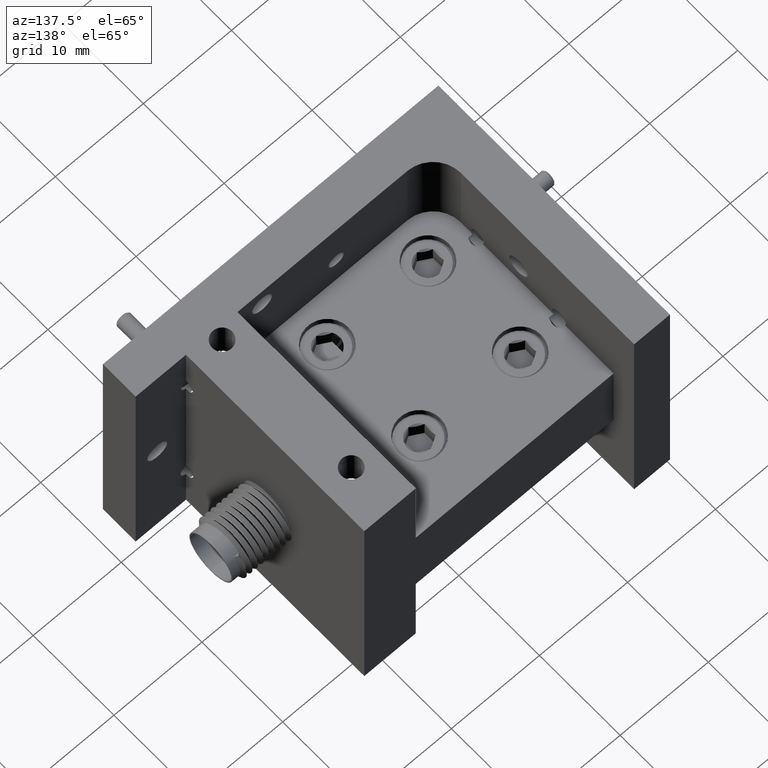
[diagram: clean part render]
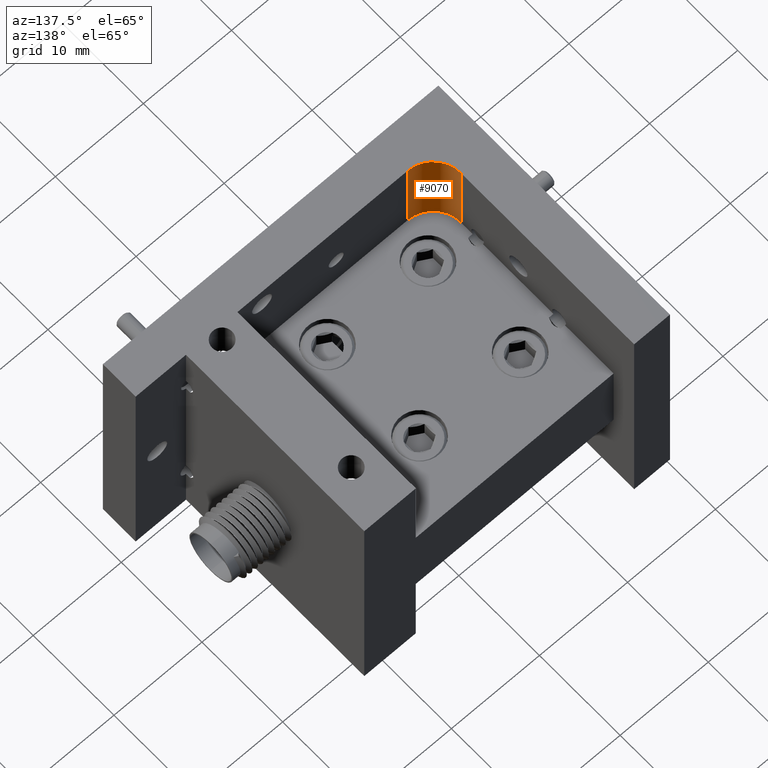
[diagram: same view with one face highlighted and labeled with its STEP entity id]
A machine part, auxiliary view. The second image highlights one B-rep face of the part: STEP entity #9070.
In plain terms, the highlighted cylindrical surface (partial cylindrical patch) has radius 3.175 mm, axis along (0, 0, -1).
Its self-contained STEP definition (entity closure, byte-faithful):
#73 = DIRECTION ( 'NONE',  ( -0.0000000000000000000, 3.925068956414171200E-017, 1.000000000000000000 ) ) ;
#181 = CARTESIAN_POINT ( 'NONE',  ( 0.2849999999999999800, -0.4049999999999999200, 0.1799999999999999400 ) ) ;
#954 = ORIENTED_EDGE ( 'NONE', *, *, #12424, .F. ) ;
#1199 = CARTESIAN_POINT ( 'NONE',  ( 0.2849999999999999800, -0.2799999999999999200, 0.5649999999999999500 ) ) ;
#1324 = DIRECTION ( 'NONE',  ( 0.0000000000000000000, 0.0000000000000000000, -1.000000000000000000 ) ) ;
#1587 = CYLINDRICAL_SURFACE ( 'NONE', #14673, 0.1250000000000000000 ) ;
#1732 = VERTEX_POINT ( 'NONE', #15330 ) ;
#1936 = CARTESIAN_POINT ( 'NONE',  ( 0.2849999999999999800, -0.4049999999999999200, 0.5649999999999999500 ) ) ;
#2000 = CIRCLE ( 'NONE', #16312, 0.1250000000000000000 ) ;
#2101 = EDGE_CURVE ( 'NONE', #1732, #9263, #4345, .T. ) ;
#4302 = LINE ( 'NONE', #11460, #4914 ) ;
#4345 = CIRCLE ( 'NONE', #7453, 0.1250000000000000000 ) ;
#4717 = LINE ( 'NONE', #15693, #11992 ) ;
#4889 = EDGE_LOOP ( 'NONE', ( #16325, #954, #11360, #16444 ) ) ;
#4914 = VECTOR ( 'NONE', #14378, 39.37007874015748100 ) ;
#5595 = DIRECTION ( 'NONE',  ( 8.195543980992789700E-016, 1.000000000000000000, 0.0000000000000000000 ) ) ;
#5665 = VERTEX_POINT ( 'NONE', #11636 ) ;
#5671 = FACE_OUTER_BOUND ( 'NONE', #4889, .T. ) ;
#6853 = DIRECTION ( 'NONE',  ( 0.0000000000000000000, 0.0000000000000000000, -1.000000000000000000 ) ) ;
#7453 = AXIS2_PLACEMENT_3D ( 'NONE', #15254, #73, #5595 ) ;
#9070 = ADVANCED_FACE ( 'NONE', ( #5671 ), #1587, .F. ) ;
#9263 = VERTEX_POINT ( 'NONE', #181 ) ;
#10845 = EDGE_CURVE ( 'NONE', #10898, #5665, #2000, .T. ) ;
#10898 = VERTEX_POINT ( 'NONE', #1936 ) ;
#11360 = ORIENTED_EDGE ( 'NONE', *, *, #10845, .F. ) ;
#11460 = CARTESIAN_POINT ( 'NONE',  ( 0.1600000000000000000, -0.2799999999999999200, 0.1799999999999999400 ) ) ;
#11636 = CARTESIAN_POINT ( 'NONE',  ( 0.1600000000000000000, -0.2799999999999999200, 0.5649999999999999500 ) ) ;
#11992 = VECTOR ( 'NONE', #17004, 39.37007874015748100 ) ;
#12424 = EDGE_CURVE ( 'NONE', #5665, #1732, #4302, .T. ) ;
#12536 = EDGE_CURVE ( 'NONE', #9263, #10898, #4717, .T. ) ;
#14378 = DIRECTION ( 'NONE',  ( -0.0000000000000000000, 0.0000000000000000000, -1.000000000000000000 ) ) ;
#14673 = AXIS2_PLACEMENT_3D ( 'NONE', #1199, #1324, #14943 ) ;
#14943 = DIRECTION ( 'NONE',  ( -1.000000000000000000, 0.0000000000000000000, 0.0000000000000000000 ) ) ;
#15035 = CARTESIAN_POINT ( 'NONE',  ( 0.2849999999999999800, -0.2799999999999999200, 0.5649999999999999500 ) ) ;
#15254 = CARTESIAN_POINT ( 'NONE',  ( 0.2849999999999999800, -0.2799999999999999200, 0.1799999999999999400 ) ) ;
#15330 = CARTESIAN_POINT ( 'NONE',  ( 0.1600000000000000000, -0.2799999999999999200, 0.1799999999999999400 ) ) ;
#15693 = CARTESIAN_POINT ( 'NONE',  ( 0.2849999999999999800, -0.4049999999999999200, 0.5649999999999999500 ) ) ;
#16312 = AXIS2_PLACEMENT_3D ( 'NONE', #15035, #6853, #16412 ) ;
#16325 = ORIENTED_EDGE ( 'NONE', *, *, #2101, .F. ) ;
#16412 = DIRECTION ( 'NONE',  ( -1.000000000000000000, 0.0000000000000000000, 0.0000000000000000000 ) ) ;
#16444 = ORIENTED_EDGE ( 'NONE', *, *, #12536, .F. ) ;
#17004 = DIRECTION ( 'NONE',  ( 0.0000000000000000000, 0.0000000000000000000, 1.000000000000000000 ) ) ;